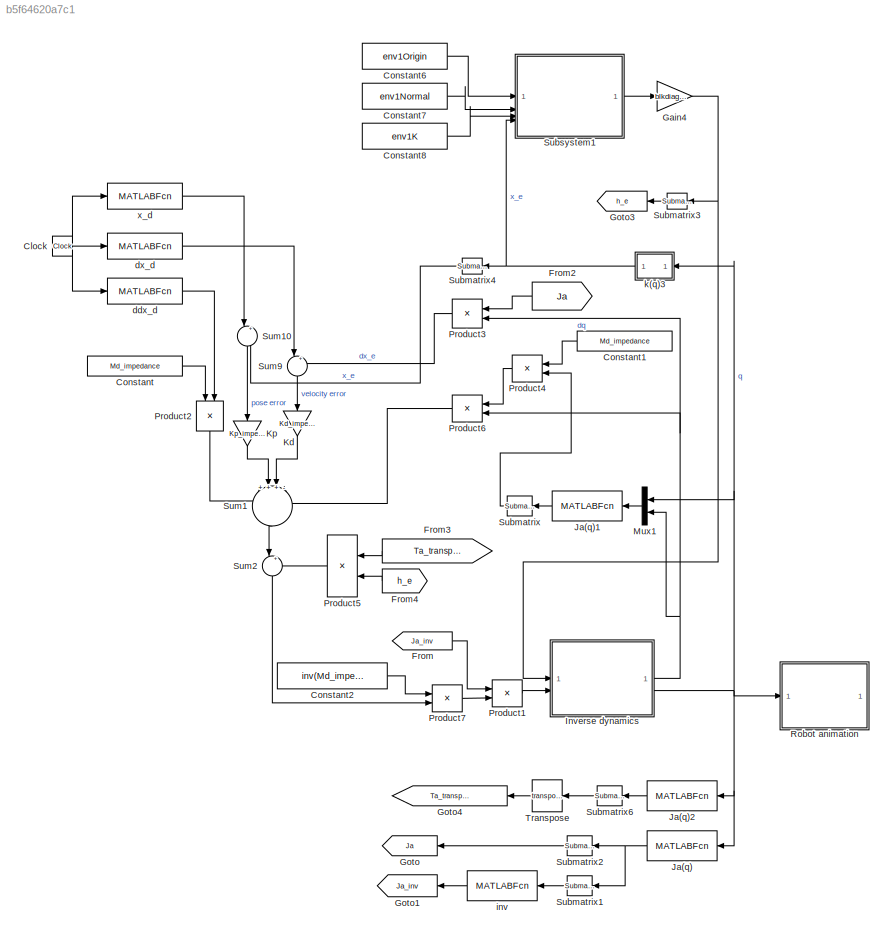
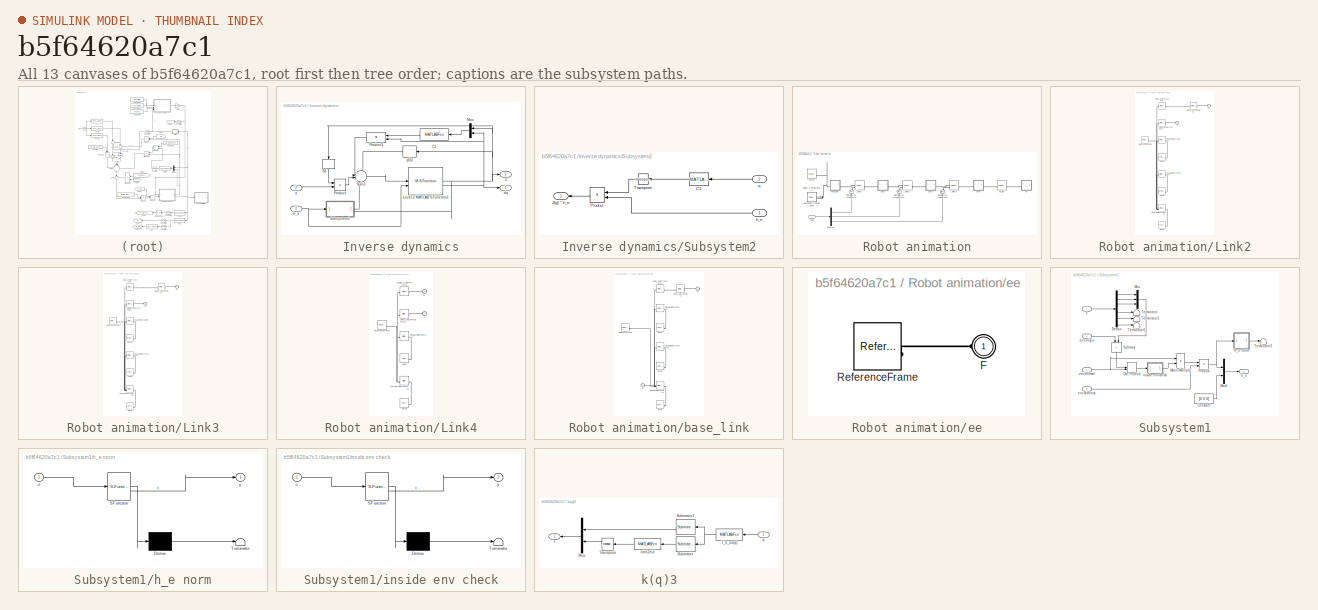
[diagram: thumbnail index - all 13 canvases of the model, root first then tree order]
MODEL slx_b5f64620a7c1
KIND model
CONFIG AbsTol = auto
CONFIG EnableMultiTasking = off
CONFIG FixedStep = auto
CONFIG MaxStep = auto
CONFIG MinStep = auto
CONFIG RelTol = 1e-3
CONFIG SampleTimeConstraint = Unconstrained
CONFIG SolverName = VariableStepAuto
CONFIG StartTime = 0.0
CONFIG StopTime = 10.0
BLOCK [Clock] Clock
BLOCK [Constant] Constant
  Value = Md_impedance
  VectorParams1D = off
BLOCK [Constant] Constant1
  NameLocation = top
  Value = Md_impedance
  VectorParams1D = off
BLOCK [Constant] Constant2
  Value = inv(Md_impedance)
  VectorParams1D = off
BLOCK [Constant] Constant6
  Value = env1Origin
BLOCK [Constant] Constant7
  Value = env1Normal
BLOCK [Constant] Constant8
  Value = env1K
BLOCK [From] From
  GotoTag = Ja_inv
BLOCK [From] From2
  GotoTag = Ja
  NameLocation = top
BLOCK [From] From3
  GotoTag = Ta_transpose
  NameLocation = top
BLOCK [From] From4
  GotoTag = h_e
  NameLocation = top
BLOCK [Gain] Gain4
  Gain = blkdiag(eye(3), zeros(3))
  Multiplication = Matrix(K*u)
BLOCK [Goto] Goto
  GotoTag = Ja
  NameLocation = top
BLOCK [Goto] Goto1
  GotoTag = Ja_inv
  NameLocation = top
BLOCK [Goto] Goto3
  GotoTag = h_e
  NameLocation = top
BLOCK [Goto] Goto4
  GotoTag = Ta_transpose
  NameLocation = top
BLOCK [SubSystem] Inverse dynamics
BLOCK [MATLABFcn] Inverse dynamics/B1
  MATLABFcn = myRobot.func.B(u(1), u(2), u(3))
  NameLocation = right
  Output1D = off
  OutputDimensions = [3 3]
  OutputSignalType = real
BLOCK [MATLABFcn] Inverse dynamics/C1
  MATLABFcn = myRobot.func.C(u(1), u(2), u(3), u(4), u(5), u(6))
  Output1D = off
  OutputDimensions = [3 3]
BLOCK [M-S-Function] Inverse dynamics/Level-2 MATLAB S-Function1
  FunctionName = robot_s_function
  Parameters = myRobot,q_i_admittance,dq_i
BLOCK [Mux] Inverse dynamics/Mux
  DisplayOption = bar
  Inputs = 2
  NameLocation = top
BLOCK [Product] Inverse dynamics/Product
  Multiplication = Matrix(*)
BLOCK [Product] Inverse dynamics/Product1
  Multiplication = Matrix(*)
  NameLocation = top
BLOCK [SubSystem] Inverse dynamics/Subsystem2
  PortSchema = {"entries":[{"content":{"sides":[{"content":{"connectorIds":["In1"]},"type":"ConnectorPlacement.EquallySpacedRectSide","uuid":"1f93c160-f5f4-4629-bb0e-75eedc441f9b"},{"content":{"connectorIds":["Out1","In2"],"side":"RIGHT"},"type":"ConnectorPlacement.EquallySpacedRectSide","uuid":"248bd9fc-4abb-4238-8c5d-1f1fbe7c5b01"},{"content":{"side":"TOP"},"type":"ConnectorPlacement.EquallySpacedRectSide","uu...<+228ch>
BLOCK [MATLABFcn] Inverse dynamics/Subsystem2/C1
  MATLABFcn = myRobot.func.J(u(1), u(2), u(3))
  Output1D = off
  OutputDimensions = [6 3]
BLOCK [Outport] Inverse dynamics/Subsystem2/J(q)' * h_e
BLOCK [Product] Inverse dynamics/Subsystem2/Product
  Multiplication = Matrix(*)
  NameLocation = top
BLOCK [Math] Inverse dynamics/Subsystem2/Transpose
  NameLocation = top
  Operator = transpose
BLOCK [Inport] Inverse dynamics/Subsystem2/h_e
BLOCK [Inport] Inverse dynamics/Subsystem2/q
  Port = 2
BLOCK [Sum] Inverse dynamics/Sum3
  Inputs = ++|++
BLOCK [Outport] Inverse dynamics/dq
BLOCK [MATLABFcn] Inverse dynamics/g(q) 
  MATLABFcn = myRobot.func.G(u(1), u(2), u(3))
  OutputDimensions = 3
BLOCK [Inport] Inverse dynamics/h_e
BLOCK [Outport] Inverse dynamics/q
  Port = 2
BLOCK [Inport] Inverse dynamics/y
  Port = 2
BLOCK [MATLABFcn] Ja(q)
  MATLABFcn = myRobot.func.Ja(u(1),u(2),u(3))
  NameLocation = top
  Output1D = off
BLOCK [MATLABFcn] Ja(q)1
  MATLABFcn = myRobot.func.dJa(u(1),u(2),u(3),u(4),u(5),u(6))
  NameLocation = top
  Output1D = off
BLOCK [MATLABFcn] Ja(q)2
  MATLABFcn = myRobot.func.Ta(u(1),u(2),u(3))
  NameLocation = top
  Output1D = off
BLOCK [Gain] Kd
  Gain = Kd_impedance
  Multiplication = Matrix(K*u)
BLOCK [Gain] Kp 
  Gain = Kp_impedance
  Multiplication = Matrix(K*u)
BLOCK [Mux] Mux1
  DisplayOption = bar
  Inputs = 2
  NameLocation = top
BLOCK [Product] Product1
  Multiplication = Matrix(*)
BLOCK [Product] Product2
  Multiplication = Matrix(*)
  NameLocation = left
BLOCK [Product] Product3
  Multiplication = Matrix(*)
  NameLocation = top
BLOCK [Product] Product4
  Multiplication = Matrix(*)
  NameLocation = top
BLOCK [Product] Product5
  Multiplication = Matrix(*)
  NameLocation = top
BLOCK [Product] Product6
  Multiplication = Matrix(*)
  NameLocation = top
BLOCK [Product] Product7
  Multiplication = Matrix(*)
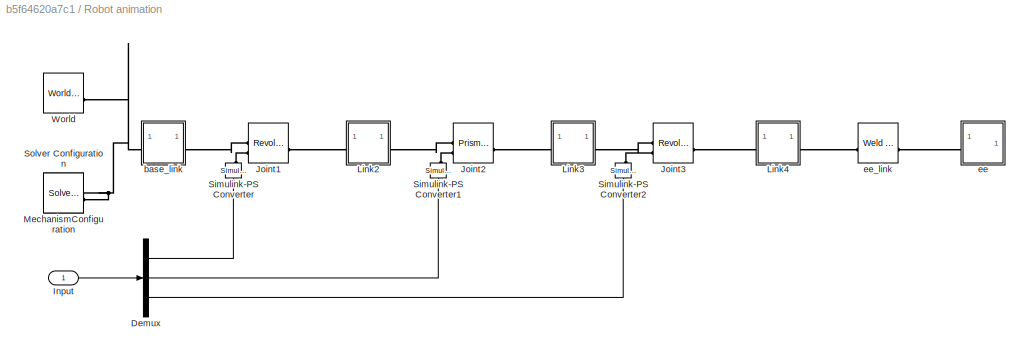
BLOCK [SubSystem] Robot animation
BLOCK [Demux] Robot animation/Demux
  Outputs = 3
BLOCK [Inport] Robot animation/Input
BLOCK [Reference] Robot animation/Joint1  REF=sm_lib/Joints/Revolute Joint
  SourceBlock = sm_lib/Joints/Revolute Joint
  SourceType = Revolute Joint
BLOCK [Reference] Robot animation/Joint2  REF=sm_lib/Joints/Prismatic
Joint
  SourceBlock = sm_lib/Joints/Prismatic\nJoint
  SourceType = Prismatic\nJoint
BLOCK [Reference] Robot animation/Joint3  REF=sm_lib/Joints/Revolute Joint
  SourceBlock = sm_lib/Joints/Revolute Joint
  SourceType = Revolute Joint
BLOCK [SubSystem] Robot animation/Link2
BLOCK [PMIOPort] Robot animation/Link2/F
  Side = Left
BLOCK [PMIOPort] Robot animation/Link2/F1
  Port = 2
  Side = Right
BLOCK [Reference] Robot animation/Link2/Inertia  REF=sm_lib/Body Elements/Inertia
  SourceBlock = sm_lib/Body Elements/Inertia
  SourceType = Inertia
BLOCK [Reference] Robot animation/Link2/InertiaOriginTransform  REF=sm_lib/Frames and
Transforms/Rigid
Transform
  SourceBlock = sm_lib/Frames and\nTransforms/Rigid\nTransform
  SourceType = Rigid\nTransform
BLOCK [Reference] Robot animation/Link2/Joint1_AxisInvTransform  REF=sm_lib/Frames and
Transforms/Rigid
Transform
  SourceBlock = sm_lib/Frames and\nTransforms/Rigid\nTransform
  SourceType = Rigid\nTransform
BLOCK [Reference] Robot animation/Link2/Joint2_AxisTransform  REF=sm_lib/Frames and
Transforms/Rigid
Transform
  SourceBlock = sm_lib/Frames and\nTransforms/Rigid\nTransform
  SourceType = Rigid\nTransform
BLOCK [Reference] Robot animation/Link2/Joint2_OriginTransform  REF=sm_lib/Frames and
Transforms/Rigid
Transform
  SourceBlock = sm_lib/Frames and\nTransforms/Rigid\nTransform
  SourceType = Rigid\nTransform
BLOCK [Reference] Robot animation/Link2/ReferenceFrame  REF=sm_lib/Frames and
Transforms/Reference
Frame
  SourceBlock = sm_lib/Frames and\nTransforms/Reference\nFrame
  SourceType = Reference\nFrame
BLOCK [Reference] Robot animation/Link2/Visual  REF=sm_lib/Body Elements/Cylindrical Solid
  SourceBlock = sm_lib/Body Elements/Cylindrical Solid
  SourceType = Cylindrical Solid
BLOCK [Reference] Robot animation/Link2/Visual1  REF=sm_lib/Body Elements/Brick Solid
  SourceBlock = sm_lib/Body Elements/Brick Solid
  SourceType = Brick Solid
BLOCK [Reference] Robot animation/Link2/VisualOrigin1Transform  REF=sm_lib/Frames and
Transforms/Rigid
Transform
  SourceBlock = sm_lib/Frames and\nTransforms/Rigid\nTransform
  SourceType = Rigid\nTransform
BLOCK [Reference] Robot animation/Link2/VisualOriginTransform  REF=sm_lib/Frames and
Transforms/Rigid
Transform
  SourceBlock = sm_lib/Frames and\nTransforms/Rigid\nTransform
  SourceType = Rigid\nTransform
BLOCK [SubSystem] Robot animation/Link3
BLOCK [PMIOPort] Robot animation/Link3/F
  Side = Left
BLOCK [PMIOPort] Robot animation/Link3/F1
  Port = 2
  Side = Right
BLOCK [Reference] Robot animation/Link3/Inertia  REF=sm_lib/Body Elements/Inertia
  SourceBlock = sm_lib/Body Elements/Inertia
  SourceType = Inertia
BLOCK [Reference] Robot animation/Link3/InertiaOriginTransform  REF=sm_lib/Frames and
Transforms/Rigid
Transform
  SourceBlock = sm_lib/Frames and\nTransforms/Rigid\nTransform
  SourceType = Rigid\nTransform
BLOCK [Reference] Robot animation/Link3/Joint2_AxisInvTransform  REF=sm_lib/Frames and
Transforms/Rigid
Transform
  SourceBlock = sm_lib/Frames and\nTransforms/Rigid\nTransform
  SourceType = Rigid\nTransform
BLOCK [Reference] Robot animation/Link3/Joint3_AxisTransform  REF=sm_lib/Frames and
Transforms/Rigid
Transform
  SourceBlock = sm_lib/Frames and\nTransforms/Rigid\nTransform
  SourceType = Rigid\nTransform
BLOCK [Reference] Robot animation/Link3/Joint3_OriginTransform  REF=sm_lib/Frames and
Transforms/Rigid
Transform
  SourceBlock = sm_lib/Frames and\nTransforms/Rigid\nTransform
  SourceType = Rigid\nTransform
BLOCK [Reference] Robot animation/Link3/ReferenceFrame  REF=sm_lib/Frames and
Transforms/Reference
Frame
  SourceBlock = sm_lib/Frames and\nTransforms/Reference\nFrame
  SourceType = Reference\nFrame
BLOCK [Reference] Robot animation/Link3/Visual  REF=sm_lib/Body Elements/Brick Solid
  SourceBlock = sm_lib/Body Elements/Brick Solid
  SourceType = Brick Solid
BLOCK [Reference] Robot animation/Link3/Visual1  REF=sm_lib/Body Elements/Cylindrical Solid
  SourceBlock = sm_lib/Body Elements/Cylindrical Solid
  SourceType = Cylindrical Solid
BLOCK [Reference] Robot animation/Link3/VisualOrigin1Transform  REF=sm_lib/Frames and
Transforms/Rigid
Transform
  SourceBlock = sm_lib/Frames and\nTransforms/Rigid\nTransform
  SourceType = Rigid\nTransform
BLOCK [Reference] Robot animation/Link3/VisualOriginTransform  REF=sm_lib/Frames and
Transforms/Rigid
Transform
  SourceBlock = sm_lib/Frames and\nTransforms/Rigid\nTransform
  SourceType = Rigid\nTransform
BLOCK [SubSystem] Robot animation/Link4
BLOCK [PMIOPort] Robot animation/Link4/F
  Side = Left
BLOCK [PMIOPort] Robot animation/Link4/F1
  Port = 2
  Side = Right
BLOCK [Reference] Robot animation/Link4/Inertia  REF=sm_lib/Body Elements/Inertia
  SourceBlock = sm_lib/Body Elements/Inertia
  SourceType = Inertia
BLOCK [Reference] Robot animation/Link4/InertiaOriginTransform  REF=sm_lib/Frames and
Transforms/Rigid
Transform
  SourceBlock = sm_lib/Frames and\nTransforms/Rigid\nTransform
  SourceType = Rigid\nTransform
BLOCK [Reference] Robot animation/Link4/Joint3_AxisInvTransform  REF=sm_lib/Frames and
Transforms/Rigid
Transform
  SourceBlock = sm_lib/Frames and\nTransforms/Rigid\nTransform
  SourceType = Rigid\nTransform
BLOCK [Reference] Robot animation/Link4/ReferenceFrame  REF=sm_lib/Frames and
Transforms/Reference
Frame
  SourceBlock = sm_lib/Frames and\nTransforms/Reference\nFrame
  SourceType = Reference\nFrame
BLOCK [Reference] Robot animation/Link4/Visual  REF=sm_lib/Body Elements/Cylindrical Solid
  SourceBlock = sm_lib/Body Elements/Cylindrical Solid
  SourceType = Cylindrical Solid
BLOCK [Reference] Robot animation/Link4/VisualOriginTransform  REF=sm_lib/Frames and
Transforms/Rigid
Transform
  SourceBlock = sm_lib/Frames and\nTransforms/Rigid\nTransform
  SourceType = Rigid\nTransform
BLOCK [Reference] Robot animation/Link4/ee_link_OriginTransform  REF=sm_lib/Frames and
Transforms/Rigid
Transform
  SourceBlock = sm_lib/Frames and\nTransforms/Rigid\nTransform
  SourceType = Rigid\nTransform
BLOCK [Reference] Robot animation/MechanismConfiguration  REF=sm_lib/Utilities/Mechanism
Configuration
  SourceBlock = sm_lib/Utilities/Mechanism\nConfiguration
  SourceType = Mechanism\nConfiguration
BLOCK [Reference] Robot animation/Simulink-PS Converter  REF=nesl_utility/Simulink-PS
Converter
  NameLocation = right
  SourceBlock = nesl_utility/Simulink-PS\nConverter
  SourceType = Simulink-PS\nConverter
BLOCK [Reference] Robot animation/Simulink-PS Converter1  REF=nesl_utility/Simulink-PS
Converter
  NameLocation = right
  SourceBlock = nesl_utility/Simulink-PS\nConverter
  SourceType = Simulink-PS\nConverter
BLOCK [Reference] Robot animation/Simulink-PS Converter2  REF=nesl_utility/Simulink-PS
Converter
  NameLocation = right
  SourceBlock = nesl_utility/Simulink-PS\nConverter
  SourceType = Simulink-PS\nConverter
BLOCK [Reference] Robot animation/Solver Configuration  REF=nesl_utility/Solver
Configuration
  SourceBlock = nesl_utility/Solver\nConfiguration
  SourceType = Solver\nConfiguration
BLOCK [Reference] Robot animation/World  REF=sm_lib/Frames and
Transforms/World Frame
  SourceBlock = sm_lib/Frames and\nTransforms/World Frame
  SourceType = World Frame
BLOCK [SubSystem] Robot animation/base_link
BLOCK [PMIOPort] Robot animation/base_link/F
  Side = Left
BLOCK [PMIOPort] Robot animation/base_link/F1
  Port = 2
  Side = Right
BLOCK [Reference] Robot animation/base_link/Inertia  REF=sm_lib/Body Elements/Inertia
  SourceBlock = sm_lib/Body Elements/Inertia
  SourceType = Inertia
BLOCK [Reference] Robot animation/base_link/InertiaOriginTransform  REF=sm_lib/Frames and
Transforms/Rigid
Transform
  SourceBlock = sm_lib/Frames and\nTransforms/Rigid\nTransform
  SourceType = Rigid\nTransform
BLOCK [Reference] Robot animation/base_link/Joint1_AxisTransform  REF=sm_lib/Frames and
Transforms/Rigid
Transform
  SourceBlock = sm_lib/Frames and\nTransforms/Rigid\nTransform
  SourceType = Rigid\nTransform
BLOCK [Reference] Robot animation/base_link/Joint1_OriginTransform  REF=sm_lib/Frames and
Transforms/Rigid
Transform
  SourceBlock = sm_lib/Frames and\nTransforms/Rigid\nTransform
  SourceType = Rigid\nTransform
BLOCK [Reference] Robot animation/base_link/ReferenceFrame  REF=sm_lib/Frames and
Transforms/Reference
Frame
  SourceBlock = sm_lib/Frames and\nTransforms/Reference\nFrame
  SourceType = Reference\nFrame
BLOCK [Reference] Robot animation/base_link/Visual  REF=sm_lib/Body Elements/Cylindrical Solid
  SourceBlock = sm_lib/Body Elements/Cylindrical Solid
  SourceType = Cylindrical Solid
BLOCK [Reference] Robot animation/base_link/Visual1  REF=sm_lib/Body Elements/Cylindrical Solid
  SourceBlock = sm_lib/Body Elements/Cylindrical Solid
  SourceType = Cylindrical Solid
BLOCK [Reference] Robot animation/base_link/VisualOrigin1Transform  REF=sm_lib/Frames and
Transforms/Rigid
Transform
  SourceBlock = sm_lib/Frames and\nTransforms/Rigid\nTransform
  SourceType = Rigid\nTransform
BLOCK [Reference] Robot animation/base_link/VisualOriginTransform  REF=sm_lib/Frames and
Transforms/Rigid
Transform
  SourceBlock = sm_lib/Frames and\nTransforms/Rigid\nTransform
  SourceType = Rigid\nTransform
BLOCK [SubSystem] Robot animation/ee
BLOCK [PMIOPort] Robot animation/ee/F
  Side = Left
BLOCK [Reference] Robot animation/ee/ReferenceFrame  REF=sm_lib/Frames and
Transforms/Reference
Frame
  SourceBlock = sm_lib/Frames and\nTransforms/Reference\nFrame
  SourceType = Reference\nFrame
BLOCK [Reference] Robot animation/ee_link  REF=sm_lib/Joints/Weld Joint
  SourceBlock = sm_lib/Joints/Weld Joint
  SourceType = Weld Joint
BLOCK [Reference] Submatrix  REF=matrix_library/Submatrix
  LibrarySourceBlock = simulink/Matrix\nOperations/Submatrix
  NameLocation = top
  SourceBlock = matrix_library/Submatrix
  SourceType = Submatrix
BLOCK [Reference] Submatrix1  REF=matrix_library/Submatrix
  LibrarySourceBlock = simulink/Matrix\nOperations/Submatrix
  NameLocation = top
  SourceBlock = matrix_library/Submatrix
  SourceType = Submatrix
BLOCK [Reference] Submatrix2  REF=matrix_library/Submatrix
  LibrarySourceBlock = simulink/Matrix\nOperations/Submatrix
  NameLocation = top
  SourceBlock = matrix_library/Submatrix
  SourceType = Submatrix
BLOCK [Reference] Submatrix3  REF=matrix_library/Submatrix
  LibrarySourceBlock = simulink/Matrix\nOperations/Submatrix
  NameLocation = top
  SourceBlock = matrix_library/Submatrix
  SourceType = Submatrix
BLOCK [Reference] Submatrix4  REF=matrix_library/Submatrix
  LibrarySourceBlock = simulink/Matrix\nOperations/Submatrix
  NameLocation = top
  SourceBlock = matrix_library/Submatrix
  SourceType = Submatrix
BLOCK [Reference] Submatrix6  REF=matrix_library/Submatrix
  LibrarySourceBlock = simulink/Matrix\nOperations/Submatrix
  NameLocation = top
  SourceBlock = matrix_library/Submatrix
  SourceType = Submatrix
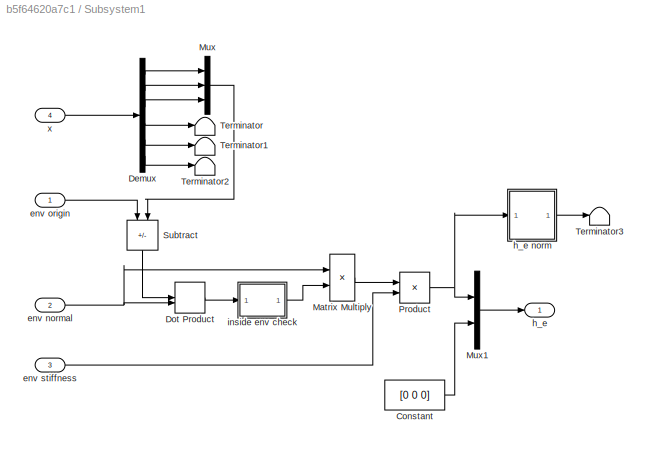
BLOCK [SubSystem] Subsystem1
BLOCK [Constant] Subsystem1/Constant
  Value = [0 0 0]
BLOCK [Demux] Subsystem1/Demux
  Outputs = 6
BLOCK [DotProduct] Subsystem1/Dot Product
  OutDataTypeStr = Inherit: Inherit via internal rule
BLOCK [Product] Subsystem1/Matrix Multiply
BLOCK [Mux] Subsystem1/Mux
  DisplayOption = bar
  Inputs = 3
BLOCK [Mux] Subsystem1/Mux1
  DisplayOption = bar
  Inputs = 2
BLOCK [Product] Subsystem1/Product
BLOCK [Sum] Subsystem1/Subtract
  IconShape = rectangular
  Inputs = -+
  NameLocation = left
BLOCK [Terminator] Subsystem1/Terminator
BLOCK [Terminator] Subsystem1/Terminator1
BLOCK [Terminator] Subsystem1/Terminator2
BLOCK [Terminator] Subsystem1/Terminator3
BLOCK [Inport] Subsystem1/env normal
  Port = 2
BLOCK [Inport] Subsystem1/env origin
BLOCK [Inport] Subsystem1/env stiffness
  Port = 3
BLOCK [Outport] Subsystem1/h_e
BLOCK [SubSystem] Subsystem1/h_e norm
  ErrorFcn = Stateflow.Translate.translate
  PermitHierarchicalResolution = ExplicitOnly
  SFBlockType = MATLAB Function
  TreatAsAtomicUnit = on
BLOCK [Demux] Subsystem1/h_e norm/ Demux 
  Outputs = 1
BLOCK [S-Function] Subsystem1/h_e norm/ SFunction 
  EnableBusSupport = on
  FunctionName = sf_sfun
  PortCounts = [1 2]
  SFcnIsStateOwnerBlock = off
  SFunctionDeploymentMode = off
  Tag = Stateflow S-Function 3
BLOCK [Terminator] Subsystem1/h_e norm/ Terminator 
BLOCK [Inport] Subsystem1/h_e norm/u
BLOCK [Outport] Subsystem1/h_e norm/y
BLOCK [SubSystem] Subsystem1/inside env check
  ErrorFcn = Stateflow.Translate.translate
  PermitHierarchicalResolution = ExplicitOnly
  SFBlockType = MATLAB Function
  TreatAsAtomicUnit = on
BLOCK [Demux] Subsystem1/inside env check/ Demux 
  Outputs = 1
BLOCK [S-Function] Subsystem1/inside env check/ SFunction 
  EnableBusSupport = on
  FunctionName = sf_sfun
  PortCounts = [1 2]
  SFcnIsStateOwnerBlock = off
  SFunctionDeploymentMode = off
  Tag = Stateflow S-Function 4
BLOCK [Terminator] Subsystem1/inside env check/ Terminator 
BLOCK [Inport] Subsystem1/inside env check/u
BLOCK [Outport] Subsystem1/inside env check/y
BLOCK [Inport] Subsystem1/x
  NameLocation = top
  Port = 4
BLOCK [Sum] Sum1
  Inputs = +++-
  NameLocation = left
BLOCK [Sum] Sum10
  Inputs = |+-
  NameLocation = left
BLOCK [Sum] Sum2
  Inputs = |+-
  NameLocation = left
BLOCK [Sum] Sum9
  Inputs = |+-
  NameLocation = left
BLOCK [Math] Transpose
  NameLocation = top
  Operator = transpose
BLOCK [MATLABFcn] ddx_d
  MATLABFcn = ddtraj_impedance(u)
  Output1D = off
BLOCK [MATLABFcn] dx_d
  MATLABFcn = dtraj_impedance(u)
  NameLocation = top
  Output1D = off
BLOCK [MATLABFcn] inv
  MATLABFcn = pinv(u)
  NameLocation = top
  Output1D = off
  OutputDimensions = [3 3]
BLOCK [SubSystem] k(q)3
  NameLocation = top
BLOCK [Mux] k(q)3/Mux
  DisplayOption = bar
  Inputs = 2
  NameLocation = top
BLOCK [Reference] k(q)3/Submatrix  REF=matrix_library/Submatrix
  NameLocation = top
  SourceBlock = matrix_library/Submatrix
  SourceType = Submatrix
BLOCK [Reference] k(q)3/Submatrix1  REF=matrix_library/Submatrix
  NameLocation = top
  SourceBlock = matrix_library/Submatrix
  SourceType = Submatrix
BLOCK [MATLABFcn] k(q)3/T_b_ee(q)
  MATLABFcn = myRobot.func.T_b_ee(u(1), u(2), u(3))
  NameLocation = top
  Output1D = off
BLOCK [Math] k(q)3/Transpose
  NameLocation = top
  Operator = transpose
BLOCK [Inport] k(q)3/q
  NameLocation = top
BLOCK [MATLABFcn] k(q)3/rotm2eul
  MATLABFcn = rotm2eul(u, "ZYZ")
  NameLocation = top
  Output1D = off
BLOCK [Outport] k(q)3/x
  NameLocation = top
BLOCK [MATLABFcn] x_d
  MATLABFcn = traj_impedance(u)
  NameLocation = top
  Output1D = off
NET Clock:1 -> ddx_d:1, dx_d:1, x_d:1
LINE Constant1:1 -> Product4:1
LINE Constant2:1 -> Product7:1
LINE Constant6:1 -> Subsystem1:1
LINE Constant7:1 -> Subsystem1:2
LINE Constant8:1 -> Subsystem1:3
LINE Constant:1 -> Product2:1
LINE From2:1 -> Product3:1
LINE From3:1 -> Product5:1
LINE From4:1 -> Product5:2
LINE From:1 -> Product1:1
NET Gain4:1 -> Inverse dynamics:1, Submatrix3:1
LINE Inverse dynamics/B1:1 -> Inverse dynamics/Product:1
LINE Inverse dynamics/C1:1 -> Inverse dynamics/Product1:1
NET Inverse dynamics/Level-2 MATLAB S-Function1:1 -> Inverse dynamics/B1:1, Inverse dynamics/Mux:1, Inverse dynamics/Subsystem2:2, Inverse dynamics/g(q) :1, Inverse dynamics/q:1
NET Inverse dynamics/Level-2 MATLAB S-Function1:2 -> Inverse dynamics/Mux:2, Inverse dynamics/Product1:2, Inverse dynamics/dq:1
LINE Inverse dynamics/Mux:1 -> Inverse dynamics/C1:1
LINE Inverse dynamics/Product1:1 -> Inverse dynamics/Sum3:2
LINE Inverse dynamics/Product:1 -> Inverse dynamics/Sum3:3
LINE Inverse dynamics/Subsystem2/C1:1 -> Inverse dynamics/Subsystem2/Transpose:1
LINE Inverse dynamics/Subsystem2/Product:1 -> Inverse dynamics/Subsystem2/J(q)' * h_e:1
LINE Inverse dynamics/Subsystem2/Transpose:1 -> Inverse dynamics/Subsystem2/Product:1
LINE Inverse dynamics/Subsystem2/h_e:1 -> Inverse dynamics/Subsystem2/Product:2
LINE Inverse dynamics/Subsystem2/q:1 -> Inverse dynamics/Subsystem2/C1:1
LINE Inverse dynamics/Subsystem2:1 -> Inverse dynamics/Sum3:4
LINE Inverse dynamics/Sum3:1 -> Inverse dynamics/Level-2 MATLAB S-Function1:1
LINE Inverse dynamics/g(q) :1 -> Inverse dynamics/Sum3:1
NET Inverse dynamics/h_e:1 -> Inverse dynamics/Level-2 MATLAB S-Function1:2, Inverse dynamics/Subsystem2:1
LINE Inverse dynamics/y:1 -> Inverse dynamics/Product:2
NET Inverse dynamics:1 -> Mux1:2, Product3:2, Product6:2
NET Inverse dynamics:2 -> Ja(q)2:1, Ja(q):1, Mux1:1, Robot animation:1, k(q)3:1
LINE Ja(q)1:1 -> Submatrix:1
LINE Ja(q)2:1 -> Submatrix6:1
NET Ja(q):1 -> Submatrix1:1, Submatrix2:1
LINE Kd:1 -> Sum1:3
LINE Kp :1 -> Sum1:2
LINE Mux1:1 -> Ja(q)1:1
LINE Product1:1 -> Inverse dynamics:2
LINE Product2:1 -> Sum1:1
LINE Product3:1 -> Sum9:2
LINE Product4:1 -> Product6:1
LINE Product5:1 -> Sum2:2
LINE Product6:1 -> Sum1:4
LINE Product7:1 -> Product1:2
LINE Robot animation/Demux:1 -> Robot animation/Simulink-PS Converter:1
LINE Robot animation/Demux:2 -> Robot animation/Simulink-PS Converter1:1
LINE Robot animation/Demux:3 -> Robot animation/Simulink-PS Converter2:1
LINE Robot animation/Input:1 -> Robot animation/Demux:1
LINE Submatrix1:1 -> inv:1
LINE Submatrix2:1 -> Goto:1
LINE Submatrix3:1 -> Goto3:1
LINE Submatrix4:1 -> Sum10:2
LINE Submatrix6:1 -> Transpose:1
LINE Submatrix:1 -> Product4:2
LINE Subsystem1/Constant:1 -> Subsystem1/Mux1:2
LINE Subsystem1/Demux:1 -> Subsystem1/Mux:1
LINE Subsystem1/Demux:2 -> Subsystem1/Mux:2
LINE Subsystem1/Demux:3 -> Subsystem1/Mux:3
LINE Subsystem1/Demux:4 -> Subsystem1/Terminator:1
LINE Subsystem1/Demux:5 -> Subsystem1/Terminator1:1
LINE Subsystem1/Demux:6 -> Subsystem1/Terminator2:1
LINE Subsystem1/Dot Product:1 -> Subsystem1/inside env check:1
LINE Subsystem1/Matrix Multiply:1 -> Subsystem1/Product:1
LINE Subsystem1/Mux1:1 -> Subsystem1/h_e:1
LINE Subsystem1/Mux:1 -> Subsystem1/Subtract:2
NET Subsystem1/Product:1 -> Subsystem1/Mux1:1, Subsystem1/h_e norm:1
LINE Subsystem1/Subtract:1 -> Subsystem1/Dot Product:1
NET Subsystem1/env normal:1 -> Subsystem1/Dot Product:2, Subsystem1/Matrix Multiply:1
LINE Subsystem1/env origin:1 -> Subsystem1/Subtract:1
LINE Subsystem1/env stiffness:1 -> Subsystem1/Product:2
LINE Subsystem1/h_e norm:1 -> Subsystem1/Terminator3:1
LINE Subsystem1/inside env check:1 -> Subsystem1/Matrix Multiply:2
LINE Subsystem1/x:1 -> Subsystem1/Demux:1
LINE Subsystem1:1 -> Gain4:1
LINE Sum10:1 -> Kp :1
LINE Sum1:1 -> Sum2:1
LINE Sum2:1 -> Product7:2
LINE Sum9:1 -> Kd:1
LINE Transpose:1 -> Goto4:1
LINE ddx_d:1 -> Product2:2
LINE dx_d:1 -> Sum9:1
LINE inv:1 -> Goto1:1
LINE k(q)3/Mux:1 -> k(q)3/x:1
LINE k(q)3/Submatrix1:1 -> k(q)3/Mux:1
LINE k(q)3/Submatrix:1 -> k(q)3/rotm2eul:1
NET k(q)3/T_b_ee(q):1 -> k(q)3/Submatrix1:1, k(q)3/Submatrix:1
LINE k(q)3/Transpose:1 -> k(q)3/Mux:2
LINE k(q)3/q:1 -> k(q)3/T_b_ee(q):1
LINE k(q)3/rotm2eul:1 -> k(q)3/Transpose:1
NET k(q)3:1 -> Submatrix4:1, Subsystem1:4
LINE x_d:1 -> Sum10:1
PLINE Robot animation/Joint1:LConn1 -- Robot animation/base_link:RConn1
PLINE Robot animation/Joint1:LConn2 -- Robot animation/Simulink-PS Converter:RConn1
PLINE Robot animation/Joint1:RConn1 -- Robot animation/Link2:LConn1
PLINE Robot animation/Joint2:LConn1 -- Robot animation/Link2:RConn1
PLINE Robot animation/Joint2:LConn2 -- Robot animation/Simulink-PS Converter1:RConn1
PLINE Robot animation/Joint2:RConn1 -- Robot animation/Link3:LConn1
PLINE Robot animation/Joint3:LConn1 -- Robot animation/Link3:RConn1
PLINE Robot animation/Joint3:LConn2 -- Robot animation/Simulink-PS Converter2:RConn1
PLINE Robot animation/Joint3:RConn1 -- Robot animation/Link4:LConn1
PLINE Robot animation/Link2/F1:RConn1 -- Robot animation/Link2/Joint2_AxisTransform:RConn1
PLINE Robot animation/Link2/F:RConn1 -- Robot animation/Link2/Joint1_AxisInvTransform:RConn1
PLINE Robot animation/Link2/Inertia:RConn1 -- Robot animation/Link2/InertiaOriginTransform:RConn1
PNET net1: Robot animation/Link2/InertiaOriginTransform:LConn1 -- Robot animation/Link2/Joint1_AxisInvTransform:LConn1 -- Robot animation/Link2/Joint2_OriginTransform:LConn1 -- Robot animation/Link2/ReferenceFrame:RConn1 -- Robot animation/Link2/VisualOrigin1Transform:LConn1 -- Robot animation/Link2/VisualOriginTransform:LConn1
PLINE Robot animation/Link2/Joint2_AxisTransform:LConn1 -- Robot animation/Link2/Joint2_OriginTransform:RConn1
PLINE Robot animation/Link2/Visual1:RConn1 -- Robot animation/Link2/VisualOrigin1Transform:RConn1
PLINE Robot animation/Link2/Visual:RConn1 -- Robot animation/Link2/VisualOriginTransform:RConn1
PLINE Robot animation/Link3/F1:RConn1 -- Robot animation/Link3/Joint3_AxisTransform:RConn1
PLINE Robot animation/Link3/F:RConn1 -- Robot animation/Link3/Joint2_AxisInvTransform:RConn1
PLINE Robot animation/Link3/Inertia:RConn1 -- Robot animation/Link3/InertiaOriginTransform:RConn1
PNET net2: Robot animation/Link3/InertiaOriginTransform:LConn1 -- Robot animation/Link3/Joint2_AxisInvTransform:LConn1 -- Robot animation/Link3/Joint3_OriginTransform:LConn1 -- Robot animation/Link3/ReferenceFrame:RConn1 -- Robot animation/Link3/VisualOrigin1Transform:LConn1 -- Robot animation/Link3/VisualOriginTransform:LConn1
PLINE Robot animation/Link3/Joint3_AxisTransform:LConn1 -- Robot animation/Link3/Joint3_OriginTransform:RConn1
PLINE Robot animation/Link3/Visual1:RConn1 -- Robot animation/Link3/VisualOrigin1Transform:RConn1
PLINE Robot animation/Link3/Visual:RConn1 -- Robot animation/Link3/VisualOriginTransform:RConn1
PLINE Robot animation/Link4/F1:RConn1 -- Robot animation/Link4/ee_link_OriginTransform:RConn1
PLINE Robot animation/Link4/F:RConn1 -- Robot animation/Link4/Joint3_AxisInvTransform:RConn1
PLINE Robot animation/Link4/Inertia:RConn1 -- Robot animation/Link4/InertiaOriginTransform:RConn1
PNET net3: Robot animation/Link4/InertiaOriginTransform:LConn1 -- Robot animation/Link4/Joint3_AxisInvTransform:LConn1 -- Robot animation/Link4/ReferenceFrame:RConn1 -- Robot animation/Link4/VisualOriginTransform:LConn1 -- Robot animation/Link4/ee_link_OriginTransform:LConn1
PLINE Robot animation/Link4/Visual:RConn1 -- Robot animation/Link4/VisualOriginTransform:RConn1
PLINE Robot animation/Link4:RConn1 -- Robot animation/ee_link:LConn1
PNET net4: Robot animation/MechanismConfiguration:RConn1 -- Robot animation/Solver Configuration:RConn1 -- Robot animation/World:RConn1 -- Robot animation/base_link:LConn1
PLINE Robot animation/base_link/F1:RConn1 -- Robot animation/base_link/Joint1_AxisTransform:RConn1
PNET net5: Robot animation/base_link/F:RConn1 -- Robot animation/base_link/InertiaOriginTransform:LConn1 -- Robot animation/base_link/Joint1_OriginTransform:LConn1 -- Robot animation/base_link/ReferenceFrame:RConn1 -- Robot animation/base_link/VisualOrigin1Transform:LConn1 -- Robot animation/base_link/VisualOriginTransform:LConn1
PLINE Robot animation/base_link/Inertia:RConn1 -- Robot animation/base_link/InertiaOriginTransform:RConn1
PLINE Robot animation/base_link/Joint1_AxisTransform:LConn1 -- Robot animation/base_link/Joint1_OriginTransform:RConn1
PLINE Robot animation/base_link/Visual1:RConn1 -- Robot animation/base_link/VisualOrigin1Transform:RConn1
PLINE Robot animation/base_link/Visual:RConn1 -- Robot animation/base_link/VisualOriginTransform:RConn1
PLINE Robot animation/ee/F:RConn1 -- Robot animation/ee/ReferenceFrame:RConn1
PLINE Robot animation/ee:LConn1 -- Robot animation/ee_link:RConn1
note: NET lines group one-source signal fan-out (src -> all destinations, sorted); 1:1 wires keep LINE; PNET lines group multi-terminal physical nets as a canonical sorted terminal list (undirected conserving connections); 2-terminal nets keep the pairwise PLINE form
CHART Subsystem1/inside env check states=1 transitions=1
  STATE_LABEL 'eML_blk_kernel()'
  STATE_LABEL 'SCRIPT:\nfunction y = fcn(u)\n    if u >= 0\n        y = 0;\n    else \n        y = u;\n    end\nend\n'
CHART Subsystem1/h_e norm states=1 transitions=1
  STATE_LABEL 'eML_blk_kernel()'
  STATE_LABEL 'SCRIPT:\nfunction y = fcn(u)\n    y = norm(u);\nend\n'
CHART  states=0 transitions=0
CHART  states=0 transitions=0
